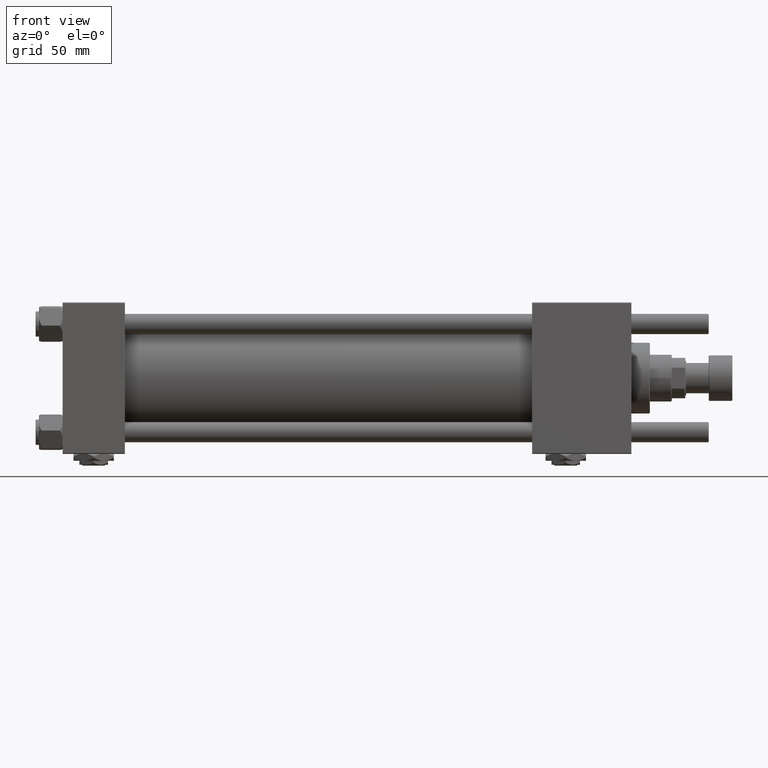
[diagram: clean part render]
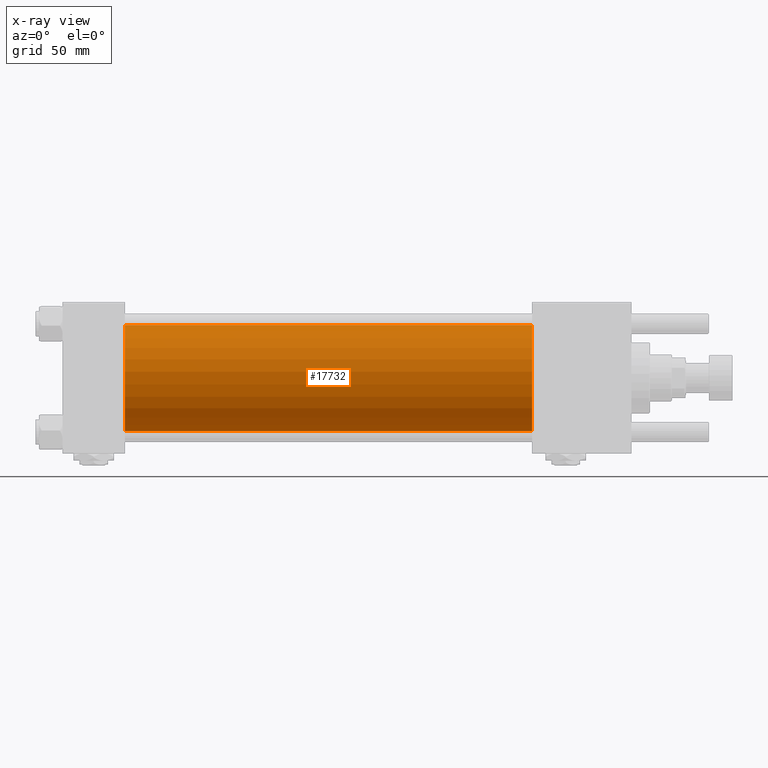
[diagram: x-ray — body ghosted, one internal face saturated and labeled with its STEP entity id]
A machine part, front view, then the same camera in x-ray: the body is ghosted and one INTERNAL B-rep face — a face not visible from any outside direction — is saturated and labeled: STEP entity #17732.
In plain terms, the highlighted cylindrical surface (partial cylindrical patch) has radius 31.5 mm, axis along (-1, -0, -0).
Its self-contained STEP definition (entity closure, byte-faithful):
#112 = EDGE_CURVE ( 'NONE', #14830, #43081, #26719, .T. ) ;
#798 = CARTESIAN_POINT ( 'NONE',  ( 278.9999999999999432, 1.255552203348951850E-15, -31.50000000000000000 ) ) ;
#1025 = DIRECTION ( 'NONE',  ( 1.000000000000000000, 0.000000000000000000, 0.000000000000000000 ) ) ;
#3148 = CARTESIAN_POINT ( 'NONE',  ( 37.00000000000000000, 1.255552203348951850E-15, -31.50000000000000000 ) ) ;
#6621 = EDGE_LOOP ( 'NONE', ( #23174, #36381, #58546, #44066 ) ) ;
#12371 = DIRECTION ( 'NONE',  ( -1.000000000000000000, -0.000000000000000000, -0.000000000000000000 ) ) ;
#14830 = VERTEX_POINT ( 'NONE', #46824 ) ;
#17615 = DIRECTION ( 'NONE',  ( -1.000000000000000000, -0.000000000000000000, -0.000000000000000000 ) ) ;
#17732 = ADVANCED_FACE ( 'NONE', ( #35758 ), #30957, .F. ) ;
#19896 = DIRECTION ( 'NONE',  ( 0.000000000000000000, 0.000000000000000000, -1.000000000000000000 ) ) ;
#20511 = EDGE_CURVE ( 'NONE', #27766, #33664, #46050, .T. ) ;
#21914 = AXIS2_PLACEMENT_3D ( 'NONE', #43281, #1025, #19896 ) ;
#21946 = CARTESIAN_POINT ( 'NONE',  ( 278.9999999999999432, -2.602085213965210642E-15, 0.000000000000000000 ) ) ;
#23174 = ORIENTED_EDGE ( 'NONE', *, *, #112, .T. ) ;
#25150 = CARTESIAN_POINT ( 'NONE',  ( 37.00000000000000000, -2.602085213965210642E-15, 0.000000000000000000 ) ) ;
#26719 = CIRCLE ( 'NONE', #21914, 31.50000000000000000 ) ;
#27073 = CARTESIAN_POINT ( 'NONE',  ( 37.00000000000000000, -2.602085213965210642E-15, 31.50000000000000000 ) ) ;
#27766 = VERTEX_POINT ( 'NONE', #27073 ) ;
#29355 = DIRECTION ( 'NONE',  ( 1.000000000000000000, 0.000000000000000000, 0.000000000000000000 ) ) ;
#30957 = CYLINDRICAL_SURFACE ( 'NONE', #35455, 31.50000000000000000 ) ;
#32159 = CARTESIAN_POINT ( 'NONE',  ( 278.9999999999999432, 1.255552203348951850E-15, -31.50000000000000000 ) ) ;
#33664 = VERTEX_POINT ( 'NONE', #3148 ) ;
#35004 = LINE ( 'NONE', #58348, #35913 ) ;
#35455 = AXIS2_PLACEMENT_3D ( 'NONE', #21946, #12371, #44140 ) ;
#35758 = FACE_OUTER_BOUND ( 'NONE', #6621, .T. ) ;
#35913 = VECTOR ( 'NONE', #17615, 1000.000000000000000 ) ;
#36381 = ORIENTED_EDGE ( 'NONE', *, *, #50470, .T. ) ;
#36656 = LINE ( 'NONE', #32159, #38600 ) ;
#38600 = VECTOR ( 'NONE', #41442, 1000.000000000000000 ) ;
#39234 = DIRECTION ( 'NONE',  ( 0.000000000000000000, 0.000000000000000000, -1.000000000000000000 ) ) ;
#41442 = DIRECTION ( 'NONE',  ( -1.000000000000000000, -0.000000000000000000, -0.000000000000000000 ) ) ;
#43081 = VERTEX_POINT ( 'NONE', #798 ) ;
#43281 = CARTESIAN_POINT ( 'NONE',  ( 278.9999999999999432, -2.602085213965210642E-15, 0.000000000000000000 ) ) ;
#44066 = ORIENTED_EDGE ( 'NONE', *, *, #59126, .F. ) ;
#44140 = DIRECTION ( 'NONE',  ( 0.000000000000000000, 0.000000000000000000, 1.000000000000000000 ) ) ;
#46050 = CIRCLE ( 'NONE', #47926, 31.50000000000000000 ) ;
#46824 = CARTESIAN_POINT ( 'NONE',  ( 278.9999999999999432, -2.602085213965210642E-15, 31.50000000000000000 ) ) ;
#47926 = AXIS2_PLACEMENT_3D ( 'NONE', #25150, #29355, #39234 ) ;
#50470 = EDGE_CURVE ( 'NONE', #43081, #33664, #36656, .T. ) ;
#58348 = CARTESIAN_POINT ( 'NONE',  ( 278.9999999999999432, -2.602085213965210642E-15, 31.50000000000000000 ) ) ;
#58546 = ORIENTED_EDGE ( 'NONE', *, *, #20511, .F. ) ;
#59126 = EDGE_CURVE ( 'NONE', #14830, #27766, #35004, .T. ) ;